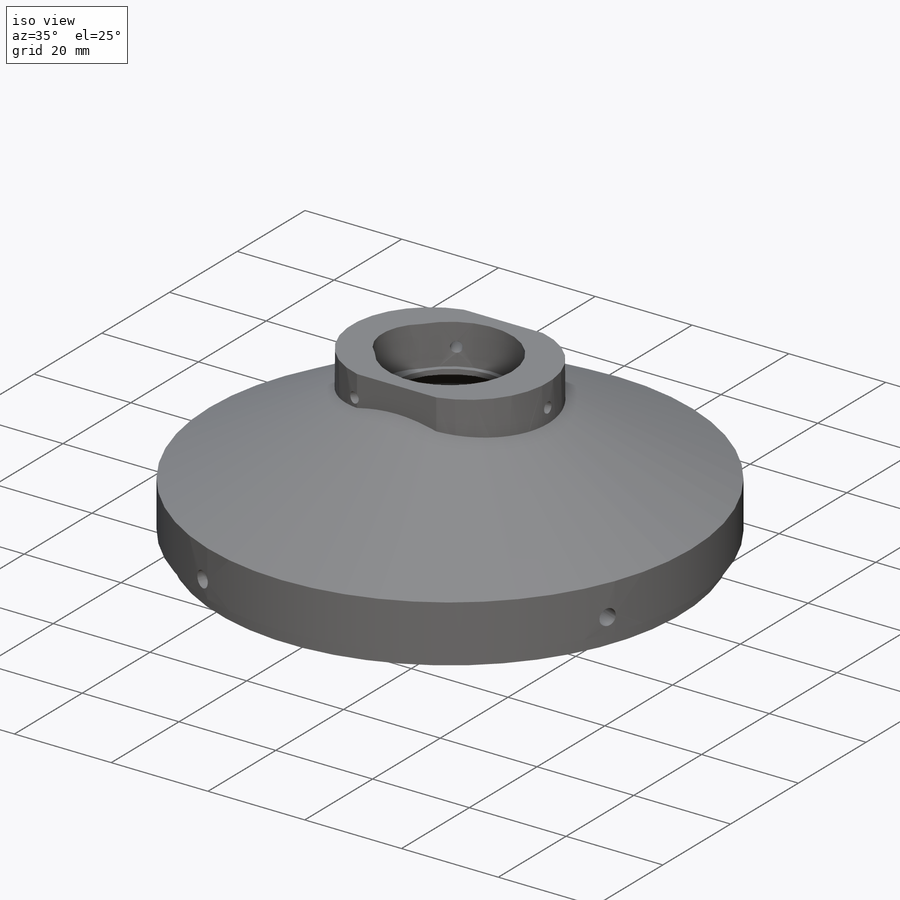
[diagram: iso view]
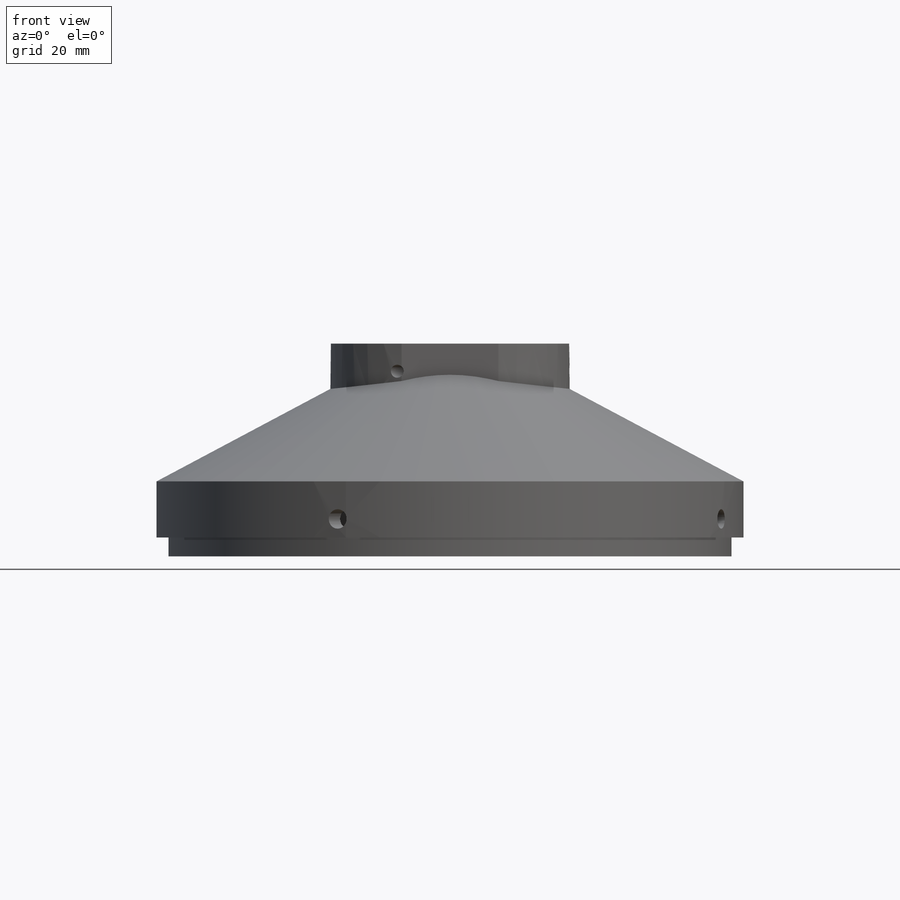
[diagram: front view]
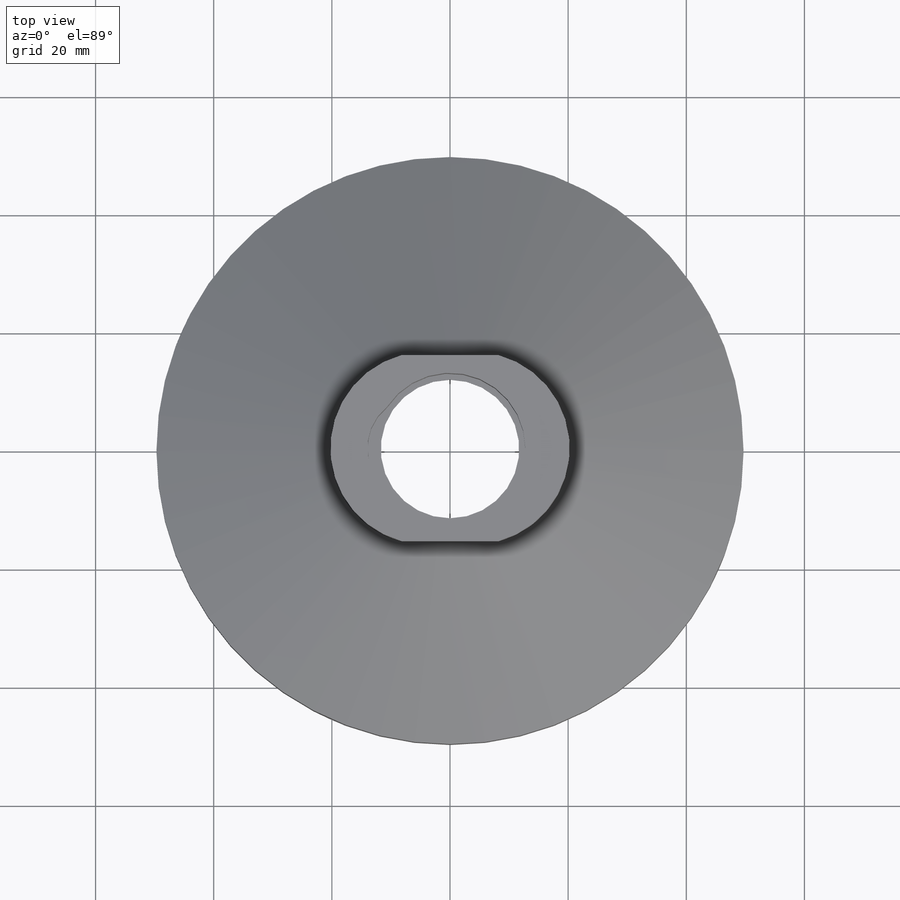
[diagram: top view]
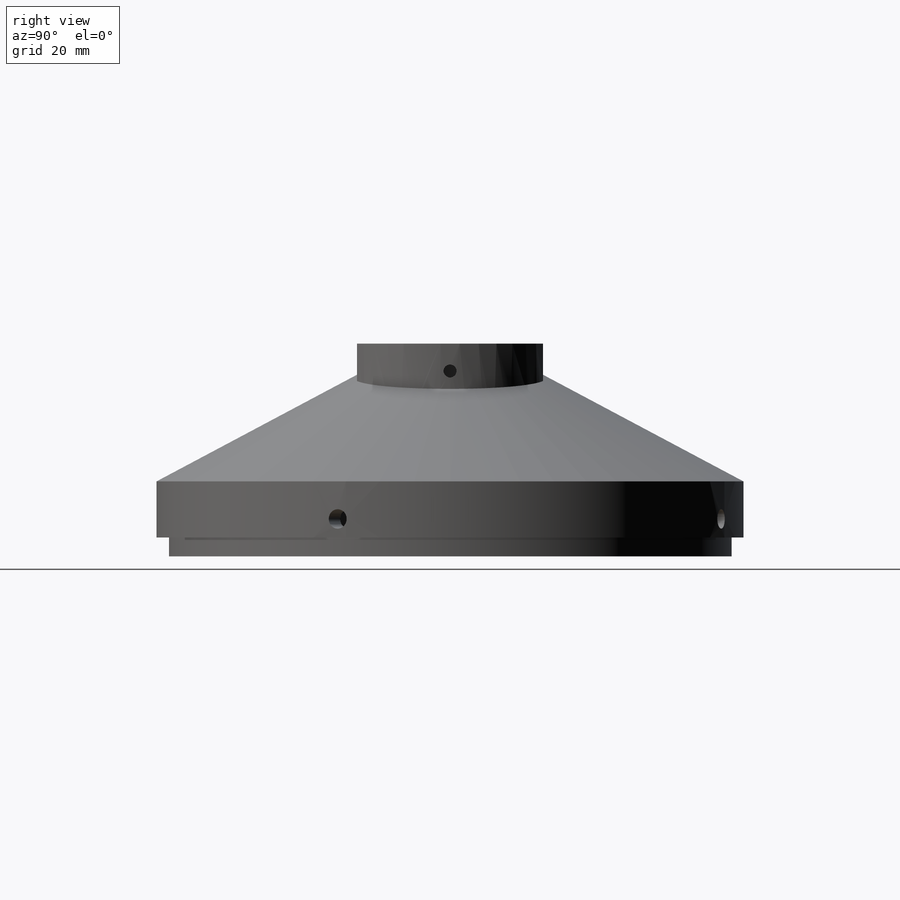
[diagram: right view]
SOLIDWORKS PART (.sldprt)
format: sldprt  version: not decoded by parser v0  size: 317,440 bytes
history: native  units: mm
features: sketch x6, cut_extrude x4, plane x2, pattern_circular x2, material x1, revolve x1, extrude x1 (+16 scaffold rows collapsed)
feature tree (33):
  scaffold x16  (default folders/planes/origin — collapsed)
  material  "Material <not specified>"
  sketch  "Sketch2"  dims[c1.D1=49.7mm c1.D2=2.025mm c1.D3=9.4996mm c1.D4=12.7mm c2.D1=49.7mm c2.D4=12.7mm c2.D5=37.5mm c2.D6=2.0mm c2.D7=9.525mm c3.D5=5.0mm c3.D6=12.75mm c3.D7=6.34mm c3.D8=17.0mm c3.D9=1.02mm c3.D10=1.02mm]
  revolve  "Revolve1"  Angle=360deg
  plane  "Plane1"
  plane  "Plane2"
  sketch  "Sketch12"  dims[D1=3.285mm]
  cut_extrude  "Cut-Extrude6"  [1 undecoded]
  sketch  "Sketch13"  dims[D1=31.5mm]
  cut_extrude  "Cut-Extrude7"  [1 undecoded]
  sketch  "Sketch14"  dims[D1=7.5mm D2=~16.370706mm]
  extrude  "Boss-Extrude1"  [1 undecoded]
  sketch  "Sketch15"  dims[c1.D2=9.0mm c1.D1=14.0mm c2.D2=~17.463926mm]
  cut_extrude  "Cut-Extrude8"  [1 undecoded]
  sketch  "Sketch16"  dims[D1=2.19mm]
  cut_extrude  "Cut-Extrude9"  [1 undecoded]
  pattern_circular  "CirPattern2"  Count=3 Angle=360deg
  pattern_circular  "CirPattern3"  Count=4 Angle=360deg
decode coverage: 9 of 14 modeling features carry decoded parameters
note: ~ marks probable driven/reference dimensions
note: 5 parameter values undecoded
summary: no parameter record found for 5 features
note: suppression state not decoded; provenance and decode notes live in map.json
